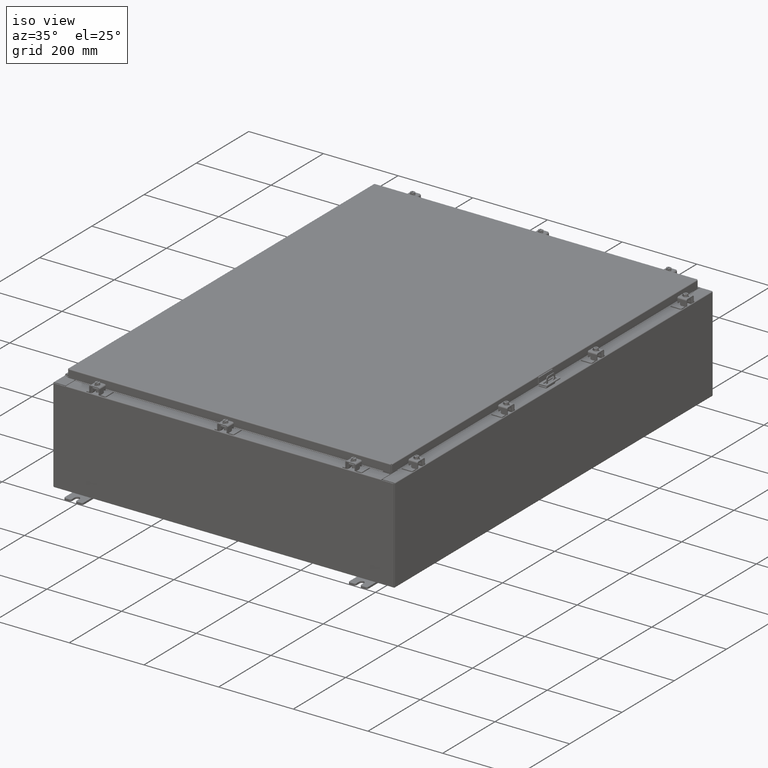
[diagram: clean part render]
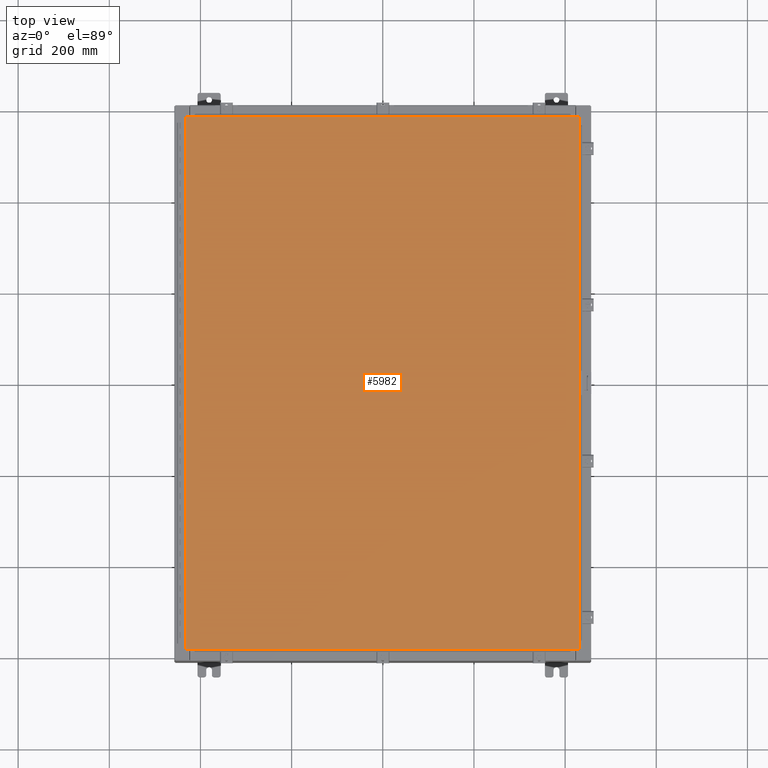
[diagram: tour spotlight — one face highlighted and labeled with its STEP entity id]
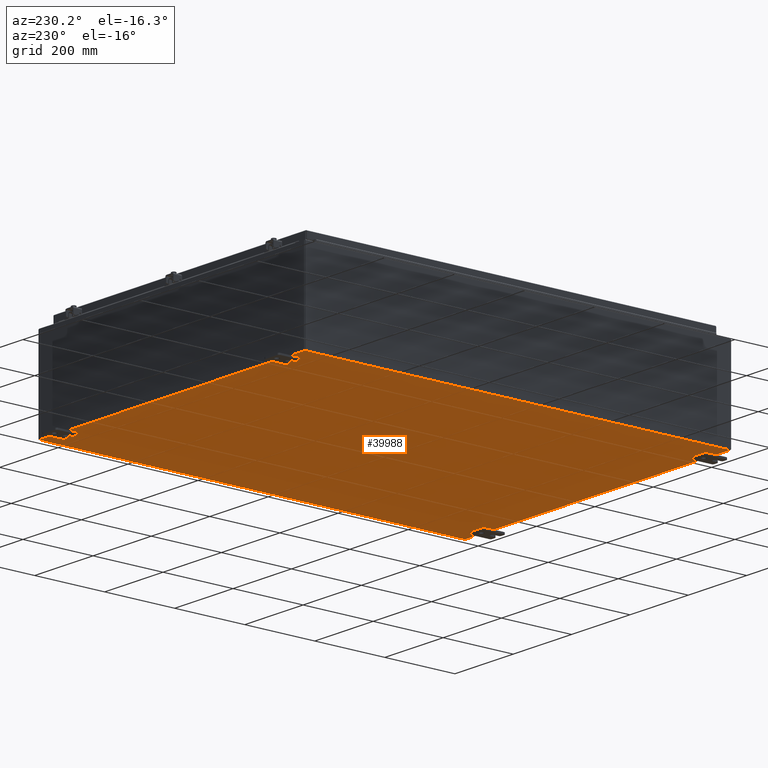
[diagram: tour spotlight — one face highlighted and labeled with its STEP entity id]
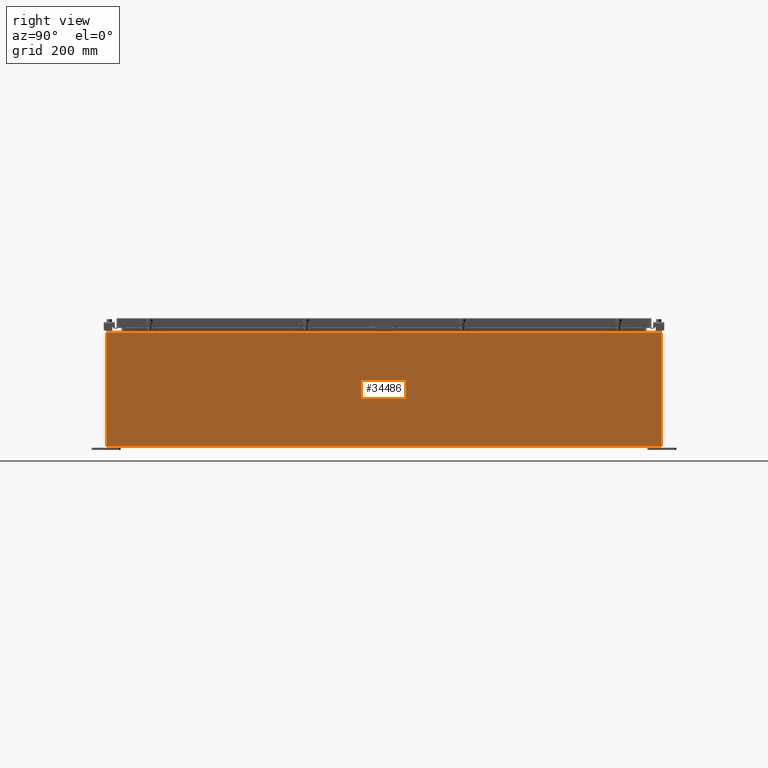
[diagram: tour spotlight — one face highlighted and labeled with its STEP entity id]
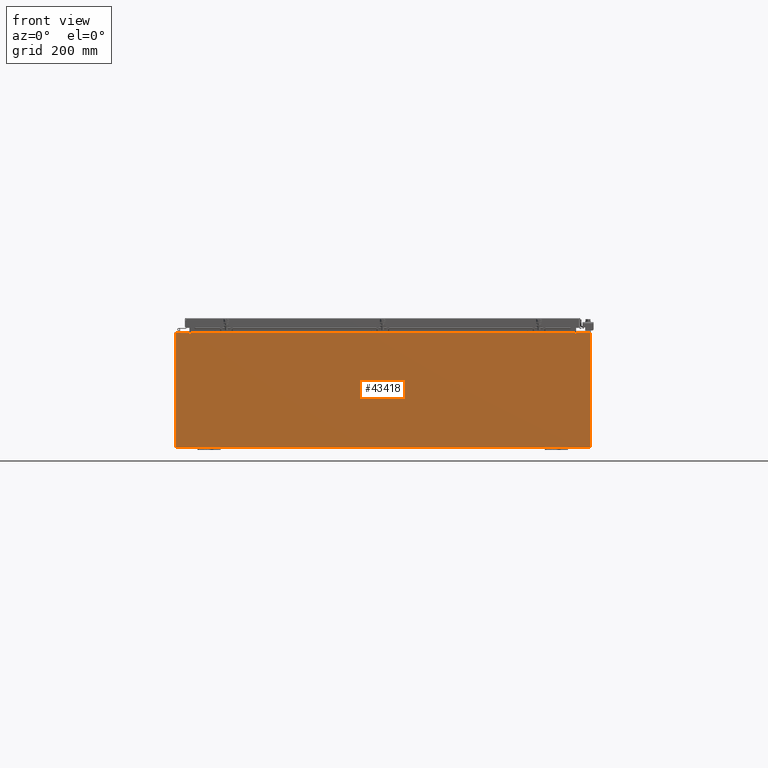
[diagram: tour spotlight — one face highlighted and labeled with its STEP entity id]
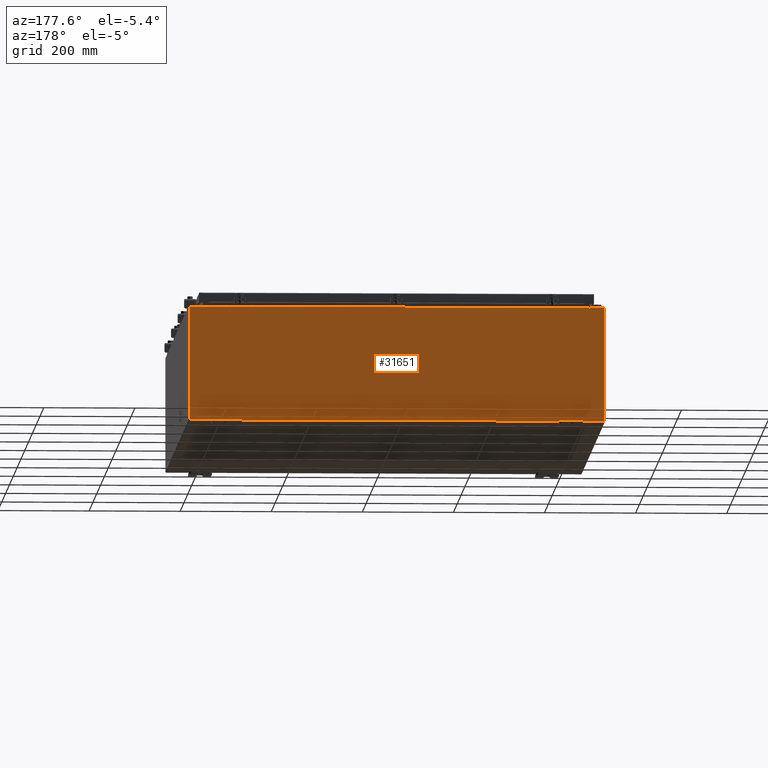
[diagram: tour spotlight — one face highlighted and labeled with its STEP entity id]
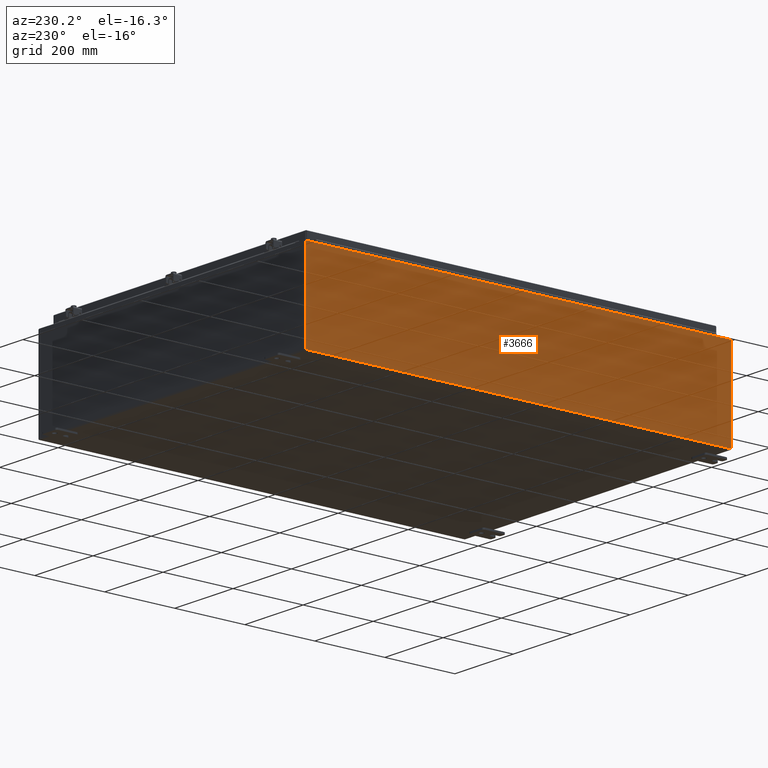
[diagram: tour spotlight — one face highlighted and labeled with its STEP entity id]
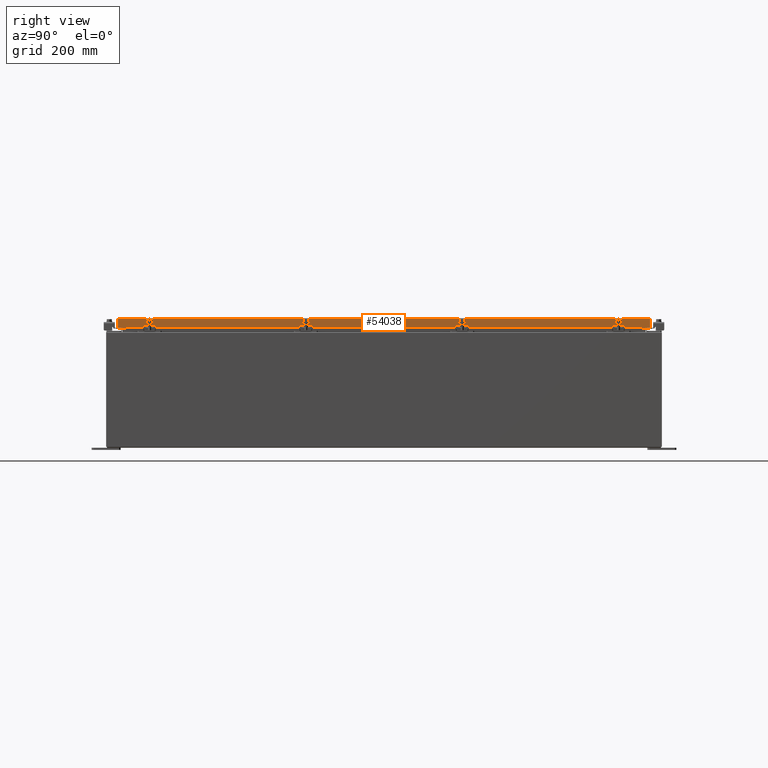
[diagram: tour spotlight — one face highlighted and labeled with its STEP entity id]
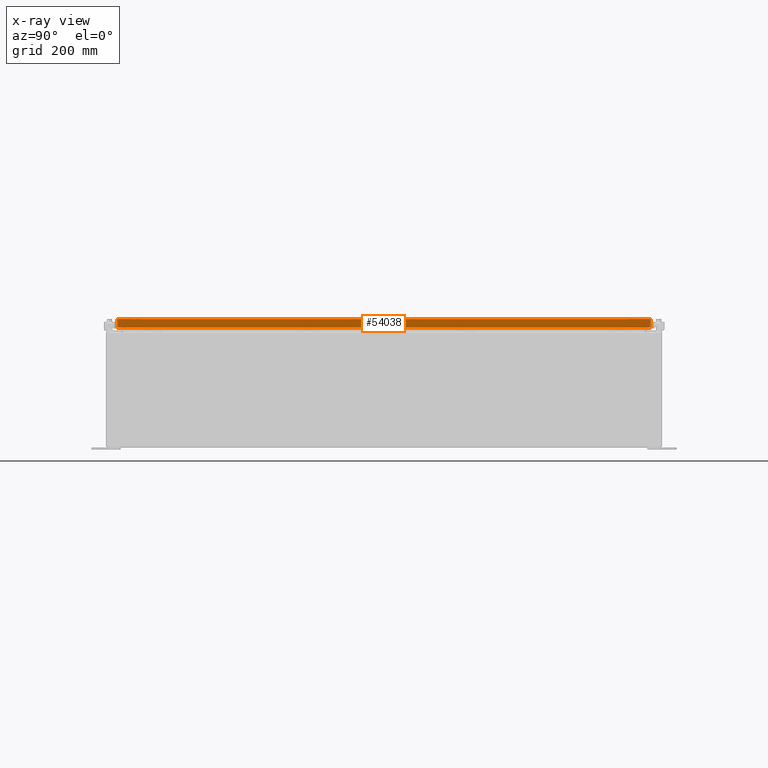
[diagram: x-ray of the same camera — body ghosted, this tour face saturated]
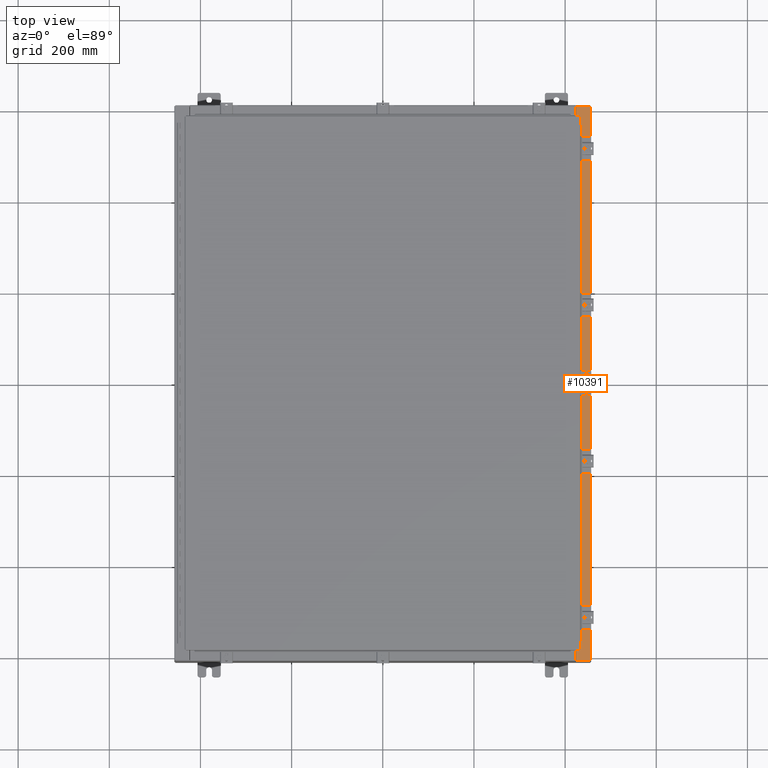
[diagram: tour spotlight — one face highlighted and labeled with its STEP entity id]
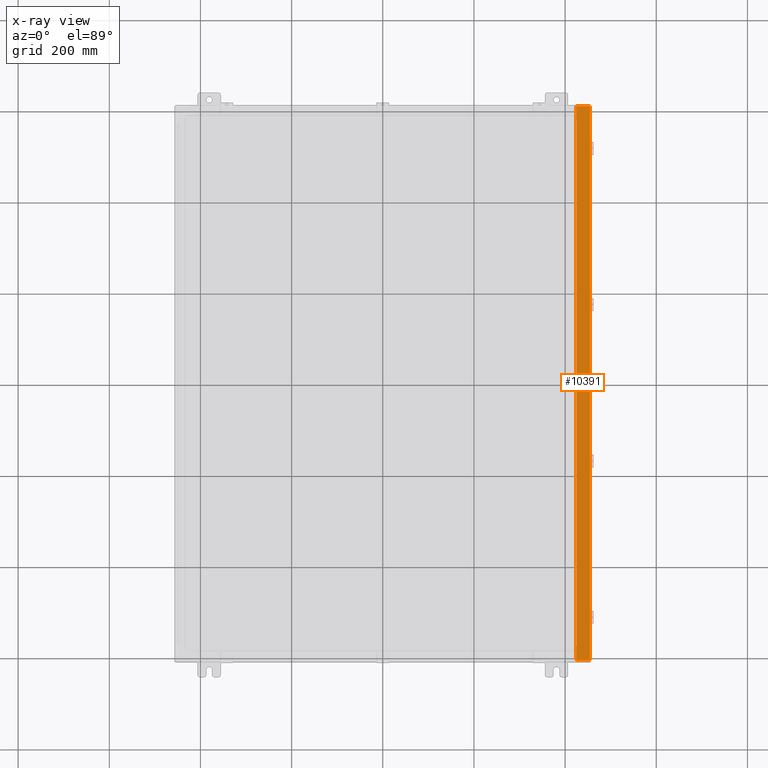
[diagram: x-ray of the same camera — body ghosted, this tour face saturated]
A machine part: a face-by-face anatomy tour. The part has 3115 B-rep faces; the first image is the clean iso view, then the 8 largest visible faces are spotlighted one at a time (largest first), each with its STEP entity span.

Face 1 — top view, entity #5982. In plain terms, the highlighted planar face has unit normal (0, 0, -1).
Definition (entity closure, byte-faithful):
#25 = CARTESIAN_POINT ( 'NONE',  ( 16.99029999999999800, 23.00630000000001000, 2.185478394931410600E-015 ) ) ;
#3387 = EDGE_CURVE ( 'NONE', #50913, #3507, #33335, .T. ) ;
#3507 = VERTEX_POINT ( 'NONE', #31065 ) ;
#3648 = CARTESIAN_POINT ( 'NONE',  ( 0.0000000000000000000, 0.0000000000000000000, 0.0000000000000000000 ) ) ;
#4104 = DIRECTION ( 'NONE',  ( 0.0000000000000000000, 1.000000000000000000, 0.0000000000000000000 ) ) ;
#5982 = ADVANCED_FACE ( 'NONE', ( #33607 ), #29200, .F. ) ;
#6112 = VECTOR ( 'NONE', #4104, 39.37007874015748100 ) ;
#7935 = DIRECTION ( 'NONE',  ( 0.0000000000000000000, 0.0000000000000000000, -1.000000000000000000 ) ) ;
#9081 = CARTESIAN_POINT ( 'NONE',  ( -16.99029999999998400, 23.00630000000001000, -2.185478394931410600E-015 ) ) ;
#13850 = LINE ( 'NONE', #34729, #35231 ) ;
#13889 = LINE ( 'NONE', #25, #21230 ) ;
#15018 = VERTEX_POINT ( 'NONE', #36266 ) ;
#15025 = ORIENTED_EDGE ( 'NONE', *, *, #50531, .T. ) ;
#16954 = DIRECTION ( 'NONE',  ( -1.000000000000000000, -0.0000000000000000000, -0.0000000000000000000 ) ) ;
#18390 = ORIENTED_EDGE ( 'NONE', *, *, #43251, .T. ) ;
#20623 = VECTOR ( 'NONE', #38962, 39.37007874015748100 ) ;
#21199 = EDGE_LOOP ( 'NONE', ( #23003, #18390, #15025, #49154 ) ) ;
#21230 = VECTOR ( 'NONE', #16954, 39.37007874015748100 ) ;
#23003 = ORIENTED_EDGE ( 'NONE', *, *, #34850, .T. ) ;
#25332 = CARTESIAN_POINT ( 'NONE',  ( 16.99029999999999800, -23.00630000000000300, 0.0000000000000000000 ) ) ;
#29200 = PLANE ( 'NONE',  #55047 ) ;
#29744 = CARTESIAN_POINT ( 'NONE',  ( 16.99029999999999800, -23.00630000000000300, 0.0000000000000000000 ) ) ;
#31065 = CARTESIAN_POINT ( 'NONE',  ( -16.99029999999999800, -23.00630000000000300, 2.185478394931410600E-015 ) ) ;
#33335 = LINE ( 'NONE', #9081, #20623 ) ;
#33607 = FACE_OUTER_BOUND ( 'NONE', #21199, .T. ) ;
#34729 = CARTESIAN_POINT ( 'NONE',  ( -16.99029999999999800, -23.00630000000000300, 2.185478394931410600E-015 ) ) ;
#34850 = EDGE_CURVE ( 'NONE', #3507, #38948, #13850, .T. ) ;
#35231 = VECTOR ( 'NONE', #39066, 39.37007874015748100 ) ;
#36266 = CARTESIAN_POINT ( 'NONE',  ( 16.99029999999999800, 23.00630000000001000, 2.185478394931410600E-015 ) ) ;
#37808 = DIRECTION ( 'NONE',  ( -1.000000000000000000, 0.0000000000000000000, -0.0000000000000000000 ) ) ;
#38948 = VERTEX_POINT ( 'NONE', #29744 ) ;
#38962 = DIRECTION ( 'NONE',  ( 0.0000000000000000000, -1.000000000000000000, 0.0000000000000000000 ) ) ;
#39066 = DIRECTION ( 'NONE',  ( 1.000000000000000000, -0.0000000000000000000, -0.0000000000000000000 ) ) ;
#40220 = LINE ( 'NONE', #25332, #6112 ) ;
#43251 = EDGE_CURVE ( 'NONE', #38948, #15018, #40220, .T. ) ;
#49154 = ORIENTED_EDGE ( 'NONE', *, *, #3387, .T. ) ;
#50531 = EDGE_CURVE ( 'NONE', #15018, #50913, #13889, .T. ) ;
#50913 = VERTEX_POINT ( 'NONE', #54151 ) ;
#54151 = CARTESIAN_POINT ( 'NONE',  ( -16.99029999999998400, 23.00630000000001000, -2.185478394931410600E-015 ) ) ;
#55047 = AXIS2_PLACEMENT_3D ( 'NONE', #3648, #7935, #37808 ) ;

Face 2 — auxiliary view, entity #39988. In plain terms, the highlighted planar face has unit normal (0, 0, -1).
Definition (entity closure, byte-faithful):
#752 = CARTESIAN_POINT ( 'NONE',  ( -18.00000000000000400, -23.92530000000000400, -0.07469999999999998900 ) ) ;
#2047 = ORIENTED_EDGE ( 'NONE', *, *, #42095, .T. ) ;
#3733 = PLANE ( 'NONE',  #28178 ) ;
#4265 = CARTESIAN_POINT ( 'NONE',  ( -18.00000000000000400, 23.92530000000000000, -0.07469999999999998900 ) ) ;
#6614 = VECTOR ( 'NONE', #8553, 39.37007874015748100 ) ;
#8012 = DIRECTION ( 'NONE',  ( 0.0000000000000000000, 0.0000000000000000000, -1.000000000000000000 ) ) ;
#8553 = DIRECTION ( 'NONE',  ( -1.000000000000000000, -0.0000000000000000000, -0.0000000000000000000 ) ) ;
#15792 = EDGE_CURVE ( 'NONE', #28536, #26786, #33305, .T. ) ;
#16879 = VECTOR ( 'NONE', #46983, 39.37007874015748100 ) ;
#17043 = CARTESIAN_POINT ( 'NONE',  ( 17.91229999999999500, 23.92529999999998900, -0.07469999999999688000 ) ) ;
#17374 = ORIENTED_EDGE ( 'NONE', *, *, #31487, .T. ) ;
#17682 = EDGE_LOOP ( 'NONE', ( #51894, #17374, #34485, #2047 ) ) ;
#19854 = VECTOR ( 'NONE', #26359, 39.37007874015748100 ) ;
#21488 = LINE ( 'NONE', #752, #41599 ) ;
#21969 = CARTESIAN_POINT ( 'NONE',  ( 17.91229999999999500, 23.92529999999998600, -0.07469999999999688000 ) ) ;
#22048 = CARTESIAN_POINT ( 'NONE',  ( -17.91230000000000500, -23.92529999999998900, -0.07469999999999996100 ) ) ;
#22637 = LINE ( 'NONE', #22048, #19854 ) ;
#26359 = DIRECTION ( 'NONE',  ( -0.0000000000000000000, 1.000000000000000000, -0.0000000000000000000 ) ) ;
#26786 = VERTEX_POINT ( 'NONE', #44921 ) ;
#28178 = AXIS2_PLACEMENT_3D ( 'NONE', #29279, #8012, #37895 ) ;
#28536 = VERTEX_POINT ( 'NONE', #21969 ) ;
#29279 = CARTESIAN_POINT ( 'NONE',  ( 0.0000000000000000000, 0.0000000000000000000, -0.07469999999999998900 ) ) ;
#31487 = EDGE_CURVE ( 'NONE', #43557, #26786, #22637, .T. ) ;
#32057 = EDGE_CURVE ( 'NONE', #43557, #42955, #21488, .T. ) ;
#33305 = LINE ( 'NONE', #4265, #6614 ) ;
#34485 = ORIENTED_EDGE ( 'NONE', *, *, #15792, .F. ) ;
#34889 = DIRECTION ( 'NONE',  ( 1.000000000000000000, 1.214154663850783700E-016, 0.0000000000000000000 ) ) ;
#37895 = DIRECTION ( 'NONE',  ( -1.000000000000000000, 0.0000000000000000000, -0.0000000000000000000 ) ) ;
#39988 = ADVANCED_FACE ( 'NONE', ( #49869 ), #3733, .T. ) ;
#40515 = CARTESIAN_POINT ( 'NONE',  ( -17.91230000000000500, -23.92529999999998600, -0.07469999999999996100 ) ) ;
#41599 = VECTOR ( 'NONE', #34889, 39.37007874015748100 ) ;
#42095 = EDGE_CURVE ( 'NONE', #28536, #42955, #51023, .T. ) ;
#42955 = VERTEX_POINT ( 'NONE', #44678 ) ;
#43557 = VERTEX_POINT ( 'NONE', #40515 ) ;
#44678 = CARTESIAN_POINT ( 'NONE',  ( 17.91229999999999500, -23.92530000000000000, -0.07469999999999998900 ) ) ;
#44921 = CARTESIAN_POINT ( 'NONE',  ( -17.91230000000000500, 23.92529999999998900, -0.07469999999999998900 ) ) ;
#46983 = DIRECTION ( 'NONE',  ( -0.0000000000000000000, -1.000000000000000000, -8.208677865577646300E-017 ) ) ;
#49869 = FACE_OUTER_BOUND ( 'NONE', #17682, .T. ) ;
#51023 = LINE ( 'NONE', #17043, #16879 ) ;
#51894 = ORIENTED_EDGE ( 'NONE', *, *, #32057, .F. ) ;

Face 3 — right view, entity #34486. In plain terms, the highlighted planar face has unit normal (-1, 0, 0).
Definition (entity closure, byte-faithful):
#951 = VERTEX_POINT ( 'NONE', #11110 ) ;
#2638 = CARTESIAN_POINT ( 'NONE',  ( 17.99999999999999600, -23.92529999999998900, -6.366913230233773300E-014 ) ) ;
#6291 = EDGE_CURVE ( 'NONE', #951, #13034, #7547, .T. ) ;
#7189 = LINE ( 'NONE', #28291, #48572 ) ;
#7547 = LINE ( 'NONE', #53117, #28896 ) ;
#8152 = VECTOR ( 'NONE', #45417, 39.37007874015748100 ) ;
#9660 = EDGE_CURVE ( 'NONE', #951, #11032, #7189, .T. ) ;
#11032 = VERTEX_POINT ( 'NONE', #23478 ) ;
#11110 = CARTESIAN_POINT ( 'NONE',  ( 17.99999999999999600, 23.92529999999998600, 0.01300000000000203600 ) ) ;
#11312 = DIRECTION ( 'NONE',  ( -1.609096119163526300E-031, -1.000000000000000000, -4.567295697298285000E-017 ) ) ;
#11778 = VECTOR ( 'NONE', #55147, 39.37007874015748100 ) ;
#13034 = VERTEX_POINT ( 'NONE', #33576 ) ;
#16201 = ORIENTED_EDGE ( 'NONE', *, *, #9660, .F. ) ;
#18856 = DIRECTION ( 'NONE',  ( 3.523082860860888200E-015, 0.0000000000000000000, 1.000000000000000000 ) ) ;
#19255 = DIRECTION ( 'NONE',  ( 3.523082860860887800E-015, 0.0000000000000000000, 1.000000000000000000 ) ) ;
#21735 = LINE ( 'NONE', #25192, #11778 ) ;
#23478 = CARTESIAN_POINT ( 'NONE',  ( 17.99999999999999600, -23.92529999999998900, 0.01299999999999897200 ) ) ;
#23847 = ORIENTED_EDGE ( 'NONE', *, *, #52145, .T. ) ;
#25192 = CARTESIAN_POINT ( 'NONE',  ( 18.00000000000003200, 23.92529999999998900, 9.837599999999994800 ) ) ;
#25477 = ORIENTED_EDGE ( 'NONE', *, *, #43067, .T. ) ;
#28161 = LINE ( 'NONE', #2638, #8152 ) ;
#28291 = CARTESIAN_POINT ( 'NONE',  ( 17.99999999999999600, -23.92529999999998900, 0.01299999999999985200 ) ) ;
#28896 = VECTOR ( 'NONE', #18856, 39.37007874015748100 ) ;
#30403 = EDGE_LOOP ( 'NONE', ( #23847, #25477, #16201, #53074 ) ) ;
#31974 = PLANE ( 'NONE',  #51623 ) ;
#33576 = CARTESIAN_POINT ( 'NONE',  ( 18.00000000000003200, 23.92529999999998600, 9.837599999999994800 ) ) ;
#34486 = ADVANCED_FACE ( 'NONE', ( #55378 ), #31974, .F. ) ;
#36293 = CARTESIAN_POINT ( 'NONE',  ( 17.99999999999999600, 0.0000000000000000000, -6.366913230233773300E-014 ) ) ;
#38649 = VERTEX_POINT ( 'NONE', #40478 ) ;
#40478 = CARTESIAN_POINT ( 'NONE',  ( 18.00000000000003200, -23.92529999999998900, 9.837600000000001900 ) ) ;
#43067 = EDGE_CURVE ( 'NONE', #38649, #11032, #28161, .T. ) ;
#44886 = DIRECTION ( 'NONE',  ( -1.000000000000000000, 0.0000000000000000000, 3.523082860860887800E-015 ) ) ;
#45417 = DIRECTION ( 'NONE',  ( -3.523082860860888200E-015, 0.0000000000000000000, -1.000000000000000000 ) ) ;
#48572 = VECTOR ( 'NONE', #11312, 39.37007874015748100 ) ;
#51623 = AXIS2_PLACEMENT_3D ( 'NONE', #36293, #44886, #19255 ) ;
#52145 = EDGE_CURVE ( 'NONE', #13034, #38649, #21735, .T. ) ;
#53074 = ORIENTED_EDGE ( 'NONE', *, *, #6291, .T. ) ;
#53117 = CARTESIAN_POINT ( 'NONE',  ( 17.99999999999999600, 23.92529999999998900, -6.366913230233773300E-014 ) ) ;
#55147 = DIRECTION ( 'NONE',  ( -0.0000000000000000000, -1.000000000000000000, -0.0000000000000000000 ) ) ;
#55378 = FACE_OUTER_BOUND ( 'NONE', #30403, .T. ) ;

Face 4 — front view, entity #43418. In plain terms, the highlighted planar face has unit normal (0, 1, -0).
Definition (entity closure, byte-faithful):
#1100 = DIRECTION ( 'NONE',  ( -2.688223102148531000E-016, -1.000000000000000000, -1.677591767810432300E-016 ) ) ;
#1140 = DIRECTION ( 'NONE',  ( 1.000000000000000000, 2.688223102148527500E-016, 8.326672684688674100E-016 ) ) ;
#1549 = CARTESIAN_POINT ( 'NONE',  ( 16.67455000000000000, 0.0000000000000000000, 4.874950000000010800 ) ) ;
#2095 = VERTEX_POINT ( 'NONE', #37620 ) ;
#2412 = LINE ( 'NONE', #15641, #22397 ) ;
#3000 = AXIS2_PLACEMENT_3D ( 'NONE', #6189, #36053, #10476 ) ;
#3231 = LINE ( 'NONE', #39724, #35932 ) ;
#3608 = DIRECTION ( 'NONE',  ( -8.764412287646896600E-014, 1.677591767810201100E-016, -1.000000000000000000 ) ) ;
#4142 = EDGE_CURVE ( 'NONE', #39135, #46623, #10640, .T. ) ;
#4429 = EDGE_CURVE ( 'NONE', #6989, #39388, #45392, .T. ) ;
#5480 = CIRCLE ( 'NONE', #3000, 0.01867499999999949400 ) ;
#5966 = EDGE_CURVE ( 'NONE', #30383, #39388, #22215, .T. ) ;
#6189 = CARTESIAN_POINT ( 'NONE',  ( -16.65587500000000200, 0.0000000000000000000, 4.874949999999987700 ) ) ;
#6989 = VERTEX_POINT ( 'NONE', #22748 ) ;
#7103 = LINE ( 'NONE', #49094, #51191 ) ;
#7116 = DIRECTION ( 'NONE',  ( -1.000000000000000000, -2.688223102148527500E-016, -8.326672684688674100E-016 ) ) ;
#7478 = CARTESIAN_POINT ( 'NONE',  ( -16.63720000000000400, 0.0000000000000000000, 4.874949999999987700 ) ) ;
#7638 = LINE ( 'NONE', #51627, #51739 ) ;
#7749 = ORIENTED_EDGE ( 'NONE', *, *, #38546, .F. ) ;
#8088 = LINE ( 'NONE', #47922, #29432 ) ;
#8494 = CARTESIAN_POINT ( 'NONE',  ( -17.92530000000000000, 0.0000000000000000000, 4.925299999999989400 ) ) ;
#8876 = DIRECTION ( 'NONE',  ( 1.000000000000000000, 2.688223102148527500E-016, 8.326672684688674100E-016 ) ) ;
#9271 = CARTESIAN_POINT ( 'NONE',  ( 17.92530000000000000, 0.0000000000000000000, 4.925300000000012400 ) ) ;
#10171 = ORIENTED_EDGE ( 'NONE', *, *, #35109, .F. ) ;
#10476 = DIRECTION ( 'NONE',  ( 0.0000000000000000000, 1.677591767810434500E-016, -1.000000000000000000 ) ) ;
#10640 = LINE ( 'NONE', #33264, #54774 ) ;
#10766 = FACE_OUTER_BOUND ( 'NONE', #43992, .T. ) ;
#11148 = LINE ( 'NONE', #43330, #22466 ) ;
#13396 = DIRECTION ( 'NONE',  ( -8.326672684688674100E-016, 1.677591767810434500E-016, -1.000000000000000000 ) ) ;
#13666 = CARTESIAN_POINT ( 'NONE',  ( 16.67455000000000700, 0.0000000000000000000, 4.925300000000012400 ) ) ;
#14238 = EDGE_CURVE ( 'NONE', #31038, #53785, #8088, .T. ) ;
#14554 = ORIENTED_EDGE ( 'NONE', *, *, #4142, .F. ) ;
#15641 = CARTESIAN_POINT ( 'NONE',  ( -17.92530000000001100, 0.0000000000000000000, -4.925300000000016000 ) ) ;
#17338 = EDGE_CURVE ( 'NONE', #22541, #49951, #7103, .T. ) ;
#17631 = CARTESIAN_POINT ( 'NONE',  ( -17.92530000000001100, 0.0000000000000000000, -4.925300000000016000 ) ) ;
#17863 = ORIENTED_EDGE ( 'NONE', *, *, #35376, .F. ) ;
#18321 = EDGE_CURVE ( 'NONE', #39135, #31038, #7638, .T. ) ;
#18372 = DIRECTION ( 'NONE',  ( 8.326672684688674100E-016, -1.677591767810434500E-016, 1.000000000000000000 ) ) ;
#20322 = DIRECTION ( 'NONE',  ( 2.688223102148528000E-016, 1.000000000000000000, -1.677591767810434000E-016 ) ) ;
#20727 = CARTESIAN_POINT ( 'NONE',  ( 16.63720000000000400, 0.0000000000000000000, 4.912300000000011700 ) ) ;
#22106 = DIRECTION ( 'NONE',  ( -8.326672684688674100E-016, 1.677591767810434500E-016, -1.000000000000000000 ) ) ;
#22215 = LINE ( 'NONE', #41938, #43661 ) ;
#22397 = VECTOR ( 'NONE', #7116, 39.37007874015748100 ) ;
#22466 = VECTOR ( 'NONE', #13396, 39.37007874015748100 ) ;
#22536 = CARTESIAN_POINT ( 'NONE',  ( 16.63720000000000400, 0.0000000000000000000, 4.874950000000010800 ) ) ;
#22541 = VERTEX_POINT ( 'NONE', #17631 ) ;
#22600 = AXIS2_PLACEMENT_3D ( 'NONE', #45974, #20322, #50269 ) ;
#22748 = CARTESIAN_POINT ( 'NONE',  ( -16.63720000000000400, 0.0000000000000000000, 4.912299999999989500 ) ) ;
#23028 = CARTESIAN_POINT ( 'NONE',  ( 17.92529999999998900, 0.0000000000000000000, -4.925299999999989400 ) ) ;
#23451 = DIRECTION ( 'NONE',  ( 8.326672684688674100E-016, -1.677591767810434500E-016, 1.000000000000000000 ) ) ;
#23601 = ORIENTED_EDGE ( 'NONE', *, *, #17338, .T. ) ;
#23738 = ORIENTED_EDGE ( 'NONE', *, *, #14238, .T. ) ;
#24511 = CIRCLE ( 'NONE', #22600, 0.01867499999999949400 ) ;
#26168 = DIRECTION ( 'NONE',  ( 1.000000000000000000, 2.688223102148527500E-016, 8.326672684688674100E-016 ) ) ;
#29105 = EDGE_CURVE ( 'NONE', #49951, #46682, #45709, .T. ) ;
#29432 = VECTOR ( 'NONE', #22106, 39.37007874015748100 ) ;
#29915 = EDGE_CURVE ( 'NONE', #47440, #2095, #5480, .T. ) ;
#30383 = VERTEX_POINT ( 'NONE', #22536 ) ;
#30928 = DIRECTION ( 'NONE',  ( -8.326672684688674100E-016, 1.677591767810434500E-016, -1.000000000000000000 ) ) ;
#31038 = VERTEX_POINT ( 'NONE', #9271 ) ;
#32961 = VECTOR ( 'NONE', #8876, 39.37007874015748100 ) ;
#33264 = CARTESIAN_POINT ( 'NONE',  ( 16.67454999999957700, 0.0000000000000000000, -1.433673827075005300E-012 ) ) ;
#33985 = VECTOR ( 'NONE', #1140, 39.37007874015748100 ) ;
#35109 = EDGE_CURVE ( 'NONE', #46623, #30383, #24511, .T. ) ;
#35376 = EDGE_CURVE ( 'NONE', #6989, #47440, #11148, .T. ) ;
#35932 = VECTOR ( 'NONE', #18372, 39.37007874015748100 ) ;
#36053 = DIRECTION ( 'NONE',  ( 2.688223102148528000E-016, 1.000000000000000000, -1.677591767810434000E-016 ) ) ;
#37287 = ORIENTED_EDGE ( 'NONE', *, *, #18321, .T. ) ;
#37604 = ORIENTED_EDGE ( 'NONE', *, *, #29915, .F. ) ;
#37620 = CARTESIAN_POINT ( 'NONE',  ( -16.67455000000000000, 0.0000000000000000000, 4.874949999999987700 ) ) ;
#37624 = DIRECTION ( 'NONE',  ( 8.326672684688674100E-016, -1.677591767810434500E-016, 1.000000000000000000 ) ) ;
#38546 = EDGE_CURVE ( 'NONE', #2095, #46682, #3231, .T. ) ;
#39135 = VERTEX_POINT ( 'NONE', #13666 ) ;
#39388 = VERTEX_POINT ( 'NONE', #20727 ) ;
#39622 = ORIENTED_EDGE ( 'NONE', *, *, #39854, .T. ) ;
#39724 = CARTESIAN_POINT ( 'NONE',  ( -16.67455000000000000, 0.0000000000000000000, -1.365923996832131600E-014 ) ) ;
#39854 = EDGE_CURVE ( 'NONE', #53785, #22541, #2412, .T. ) ;
#40624 = CARTESIAN_POINT ( 'NONE',  ( -16.67455000000000000, 0.0000000000000000000, 4.925299999999989400 ) ) ;
#41478 = ORIENTED_EDGE ( 'NONE', *, *, #5966, .F. ) ;
#41938 = CARTESIAN_POINT ( 'NONE',  ( 16.63720000000000400, 0.0000000000000000000, 1.365923996832131600E-014 ) ) ;
#43330 = CARTESIAN_POINT ( 'NONE',  ( -16.63720000000000400, 0.0000000000000000000, -1.365923996832131600E-014 ) ) ;
#43418 = ADVANCED_FACE ( 'NONE', ( #10766 ), #52269, .F. ) ;
#43661 = VECTOR ( 'NONE', #37624, 39.37007874015748100 ) ;
#43992 = EDGE_LOOP ( 'NONE', ( #7749, #37604, #17863, #50465, #41478, #10171, #14554, #37287, #23738, #39622, #23601, #44530 ) ) ;
#44530 = ORIENTED_EDGE ( 'NONE', *, *, #29105, .T. ) ;
#45392 = LINE ( 'NONE', #52307, #33985 ) ;
#45709 = LINE ( 'NONE', #47366, #32961 ) ;
#45906 = AXIS2_PLACEMENT_3D ( 'NONE', #47965, #1100, #30928 ) ;
#45974 = CARTESIAN_POINT ( 'NONE',  ( 16.65587500000000200, 0.0000000000000000000, 4.874950000000010800 ) ) ;
#46623 = VERTEX_POINT ( 'NONE', #1549 ) ;
#46682 = VERTEX_POINT ( 'NONE', #40624 ) ;
#47366 = CARTESIAN_POINT ( 'NONE',  ( -17.92530000000000000, 0.0000000000000000000, 4.925299999999989400 ) ) ;
#47440 = VERTEX_POINT ( 'NONE', #7478 ) ;
#47922 = CARTESIAN_POINT ( 'NONE',  ( 17.92530000000000000, 0.0000000000000000000, 4.925300000000012400 ) ) ;
#47965 = CARTESIAN_POINT ( 'NONE',  ( 0.0000000000000000000, 0.0000000000000000000, 0.0000000000000000000 ) ) ;
#49094 = CARTESIAN_POINT ( 'NONE',  ( -17.92530000000000000, 0.0000000000000000000, 4.925299999999989400 ) ) ;
#49951 = VERTEX_POINT ( 'NONE', #8494 ) ;
#50269 = DIRECTION ( 'NONE',  ( 0.0000000000000000000, 1.677591767810434500E-016, -1.000000000000000000 ) ) ;
#50465 = ORIENTED_EDGE ( 'NONE', *, *, #4429, .T. ) ;
#51191 = VECTOR ( 'NONE', #23451, 39.37007874015748100 ) ;
#51627 = CARTESIAN_POINT ( 'NONE',  ( -17.92530000000000000, 0.0000000000000000000, 4.925299999999989400 ) ) ;
#51739 = VECTOR ( 'NONE', #26168, 39.37007874015748100 ) ;
#52269 = PLANE ( 'NONE',  #45906 ) ;
#52307 = CARTESIAN_POINT ( 'NONE',  ( -16.63720000000000400, 0.0000000000000000000, 4.912299999999989500 ) ) ;
#53785 = VERTEX_POINT ( 'NONE', #23028 ) ;
#54774 = VECTOR ( 'NONE', #3608, 39.37007874015748100 ) ;

Face 5 — auxiliary view, entity #31651. In plain terms, the highlighted planar face has unit normal (0, -1, 0).
Definition (entity closure, byte-faithful):
#296 = EDGE_CURVE ( 'NONE', #27588, #50567, #21619, .T. ) ;
#1169 = VECTOR ( 'NONE', #40123, 39.37007874015748100 ) ;
#2481 = CARTESIAN_POINT ( 'NONE',  ( 16.67454999999957700, 0.0000000000000000000, -1.447333067043326700E-012 ) ) ;
#2507 = LINE ( 'NONE', #35791, #1169 ) ;
#2865 = ORIENTED_EDGE ( 'NONE', *, *, #9477, .T. ) ;
#3163 = LINE ( 'NONE', #37747, #13145 ) ;
#4118 = FACE_OUTER_BOUND ( 'NONE', #36236, .T. ) ;
#4446 = EDGE_CURVE ( 'NONE', #52005, #43382, #46724, .T. ) ;
#4652 = LINE ( 'NONE', #26536, #48736 ) ;
#4694 = EDGE_CURVE ( 'NONE', #43382, #50567, #6312, .T. ) ;
#4863 = DIRECTION ( 'NONE',  ( 1.000000000000000000, 0.0000000000000000000, 0.0000000000000000000 ) ) ;
#5310 = EDGE_CURVE ( 'NONE', #8154, #32196, #41744, .T. ) ;
#6312 = LINE ( 'NONE', #36985, #49063 ) ;
#6779 = DIRECTION ( 'NONE',  ( 0.0000000000000000000, -1.000000000000000000, 0.0000000000000000000 ) ) ;
#6922 = AXIS2_PLACEMENT_3D ( 'NONE', #33529, #7981, #37860 ) ;
#7981 = DIRECTION ( 'NONE',  ( -0.0000000000000000000, 1.000000000000000000, -0.0000000000000000000 ) ) ;
#8154 = VERTEX_POINT ( 'NONE', #9210 ) ;
#8219 = EDGE_CURVE ( 'NONE', #41186, #16528, #4652, .T. ) ;
#8441 = EDGE_CURVE ( 'NONE', #31428, #52005, #43399, .T. ) ;
#8771 = EDGE_CURVE ( 'NONE', #31428, #49930, #13248, .T. ) ;
#8966 = VECTOR ( 'NONE', #47317, 39.37007874015748100 ) ;
#9077 = ORIENTED_EDGE ( 'NONE', *, *, #4446, .F. ) ;
#9128 = CARTESIAN_POINT ( 'NONE',  ( 16.63720000000000400, 0.0000000000000000000, 4.874949999999999200 ) ) ;
#9197 = CARTESIAN_POINT ( 'NONE',  ( -16.67455000000000000, 0.0000000000000000000, 4.925300000000000000 ) ) ;
#9210 = CARTESIAN_POINT ( 'NONE',  ( 17.92530000000000000, 0.0000000000000000000, -4.925300000000000000 ) ) ;
#9477 = EDGE_CURVE ( 'NONE', #49930, #8154, #2507, .T. ) ;
#10311 = PLANE ( 'NONE',  #54756 ) ;
#11796 = CARTESIAN_POINT ( 'NONE',  ( -16.63720000000000400, 0.0000000000000000000, 4.912300000000000100 ) ) ;
#13145 = VECTOR ( 'NONE', #24623, 39.37007874015748100 ) ;
#13248 = LINE ( 'NONE', #21808, #44688 ) ;
#14150 = DIRECTION ( 'NONE',  ( -0.0000000000000000000, 1.000000000000000000, -0.0000000000000000000 ) ) ;
#15027 = ORIENTED_EDGE ( 'NONE', *, *, #21094, .F. ) ;
#15618 = ORIENTED_EDGE ( 'NONE', *, *, #23536, .T. ) ;
#16528 = VERTEX_POINT ( 'NONE', #9197 ) ;
#19607 = DIRECTION ( 'NONE',  ( -8.681145560800009800E-014, 0.0000000000000000000, -1.000000000000000000 ) ) ;
#20225 = CARTESIAN_POINT ( 'NONE',  ( -16.63720000000000400, 0.0000000000000000000, 0.0000000000000000000 ) ) ;
#20566 = ORIENTED_EDGE ( 'NONE', *, *, #8441, .F. ) ;
#21094 = EDGE_CURVE ( 'NONE', #51150, #41186, #48831, .T. ) ;
#21110 = VECTOR ( 'NONE', #32151, 39.37007874015748100 ) ;
#21619 = LINE ( 'NONE', #38730, #8966 ) ;
#21808 = CARTESIAN_POINT ( 'NONE',  ( -17.92530000000000000, 0.0000000000000000000, 4.925300000000000000 ) ) ;
#22544 = CARTESIAN_POINT ( 'NONE',  ( -17.92530000000000000, 0.0000000000000000000, 4.925300000000000000 ) ) ;
#23536 = EDGE_CURVE ( 'NONE', #25978, #16528, #3163, .T. ) ;
#23719 = CARTESIAN_POINT ( 'NONE',  ( 0.0000000000000000000, 0.0000000000000000000, 0.0000000000000000000 ) ) ;
#23902 = CARTESIAN_POINT ( 'NONE',  ( 16.67455000000000000, 0.0000000000000000000, 4.874949999999999200 ) ) ;
#24212 = DIRECTION ( 'NONE',  ( 0.0000000000000000000, 0.0000000000000000000, 1.000000000000000000 ) ) ;
#24523 = DIRECTION ( 'NONE',  ( 0.0000000000000000000, 0.0000000000000000000, -1.000000000000000000 ) ) ;
#24623 = DIRECTION ( 'NONE',  ( 1.000000000000000000, 0.0000000000000000000, 0.0000000000000000000 ) ) ;
#25429 = CARTESIAN_POINT ( 'NONE',  ( 17.92530000000000000, 0.0000000000000000000, 4.925300000000000000 ) ) ;
#25978 = VERTEX_POINT ( 'NONE', #22544 ) ;
#26536 = CARTESIAN_POINT ( 'NONE',  ( -16.67455000000000000, 0.0000000000000000000, 0.0000000000000000000 ) ) ;
#27588 = VERTEX_POINT ( 'NONE', #11796 ) ;
#27979 = VECTOR ( 'NONE', #19607, 39.37007874015748100 ) ;
#31428 = VERTEX_POINT ( 'NONE', #34420 ) ;
#31651 = ADVANCED_FACE ( 'NONE', ( #4118 ), #10311, .F. ) ;
#32151 = DIRECTION ( 'NONE',  ( -0.0000000000000000000, -0.0000000000000000000, 1.000000000000000000 ) ) ;
#32196 = VERTEX_POINT ( 'NONE', #44075 ) ;
#33529 = CARTESIAN_POINT ( 'NONE',  ( -16.65587500000000200, 0.0000000000000000000, 4.874949999999999200 ) ) ;
#34012 = VECTOR ( 'NONE', #24523, 39.37007874015748100 ) ;
#34105 = ORIENTED_EDGE ( 'NONE', *, *, #296, .T. ) ;
#34349 = CARTESIAN_POINT ( 'NONE',  ( 16.63720000000000400, 0.0000000000000000000, 4.912300000000000100 ) ) ;
#34420 = CARTESIAN_POINT ( 'NONE',  ( 16.67455000000000700, 0.0000000000000000000, 4.925300000000000000 ) ) ;
#34974 = ORIENTED_EDGE ( 'NONE', *, *, #8771, .T. ) ;
#35791 = CARTESIAN_POINT ( 'NONE',  ( 17.92530000000000000, 0.0000000000000000000, 4.925300000000000000 ) ) ;
#36236 = EDGE_LOOP ( 'NONE', ( #46482, #15027, #42015, #34105, #41765, #9077, #20566, #34974, #2865, #46053, #37645, #15618 ) ) ;
#36662 = DIRECTION ( 'NONE',  ( 0.0000000000000000000, -0.0000000000000000000, -1.000000000000000000 ) ) ;
#36985 = CARTESIAN_POINT ( 'NONE',  ( 16.63720000000000400, 0.0000000000000000000, 0.0000000000000000000 ) ) ;
#37645 = ORIENTED_EDGE ( 'NONE', *, *, #51965, .T. ) ;
#37747 = CARTESIAN_POINT ( 'NONE',  ( -17.92530000000000000, 0.0000000000000000000, 4.925300000000000000 ) ) ;
#37860 = DIRECTION ( 'NONE',  ( 0.0000000000000000000, 0.0000000000000000000, -1.000000000000000000 ) ) ;
#38730 = CARTESIAN_POINT ( 'NONE',  ( -16.63720000000000400, 0.0000000000000000000, 4.912300000000000100 ) ) ;
#39810 = CARTESIAN_POINT ( 'NONE',  ( 16.65587500000000200, 0.0000000000000000000, 4.874949999999999200 ) ) ;
#40123 = DIRECTION ( 'NONE',  ( 0.0000000000000000000, 0.0000000000000000000, -1.000000000000000000 ) ) ;
#40199 = CARTESIAN_POINT ( 'NONE',  ( -16.67455000000000000, 0.0000000000000000000, 4.874949999999999200 ) ) ;
#41186 = VERTEX_POINT ( 'NONE', #40199 ) ;
#41387 = AXIS2_PLACEMENT_3D ( 'NONE', #39810, #14150, #44087 ) ;
#41744 = LINE ( 'NONE', #54335, #51757 ) ;
#41765 = ORIENTED_EDGE ( 'NONE', *, *, #4694, .F. ) ;
#42015 = ORIENTED_EDGE ( 'NONE', *, *, #44558, .F. ) ;
#43382 = VERTEX_POINT ( 'NONE', #9128 ) ;
#43399 = LINE ( 'NONE', #2481, #27979 ) ;
#43773 = DIRECTION ( 'NONE',  ( 0.0000000000000000000, 0.0000000000000000000, 1.000000000000000000 ) ) ;
#44075 = CARTESIAN_POINT ( 'NONE',  ( -17.92530000000000000, 0.0000000000000000000, -4.925300000000000000 ) ) ;
#44087 = DIRECTION ( 'NONE',  ( 0.0000000000000000000, 0.0000000000000000000, -1.000000000000000000 ) ) ;
#44558 = EDGE_CURVE ( 'NONE', #27588, #51150, #45421, .T. ) ;
#44688 = VECTOR ( 'NONE', #4863, 39.37007874015748100 ) ;
#45071 = CARTESIAN_POINT ( 'NONE',  ( -17.92530000000000000, 0.0000000000000000000, 4.925300000000000000 ) ) ;
#45421 = LINE ( 'NONE', #20225, #34012 ) ;
#45935 = DIRECTION ( 'NONE',  ( -1.000000000000000000, -0.0000000000000000000, -0.0000000000000000000 ) ) ;
#46053 = ORIENTED_EDGE ( 'NONE', *, *, #5310, .T. ) ;
#46482 = ORIENTED_EDGE ( 'NONE', *, *, #8219, .F. ) ;
#46724 = CIRCLE ( 'NONE', #41387, 0.01867499999999949400 ) ;
#47017 = CARTESIAN_POINT ( 'NONE',  ( -16.63720000000000400, 0.0000000000000000000, 4.874949999999999200 ) ) ;
#47317 = DIRECTION ( 'NONE',  ( 1.000000000000000000, 0.0000000000000000000, 0.0000000000000000000 ) ) ;
#48736 = VECTOR ( 'NONE', #43773, 39.37007874015748100 ) ;
#48831 = CIRCLE ( 'NONE', #6922, 0.01867499999999949400 ) ;
#49063 = VECTOR ( 'NONE', #24212, 39.37007874015748100 ) ;
#49930 = VERTEX_POINT ( 'NONE', #25429 ) ;
#50567 = VERTEX_POINT ( 'NONE', #34349 ) ;
#51150 = VERTEX_POINT ( 'NONE', #47017 ) ;
#51757 = VECTOR ( 'NONE', #45935, 39.37007874015748100 ) ;
#51965 = EDGE_CURVE ( 'NONE', #32196, #25978, #53927, .T. ) ;
#52005 = VERTEX_POINT ( 'NONE', #23902 ) ;
#53927 = LINE ( 'NONE', #45071, #21110 ) ;
#54335 = CARTESIAN_POINT ( 'NONE',  ( -17.92530000000000000, 0.0000000000000000000, -4.925300000000000000 ) ) ;
#54756 = AXIS2_PLACEMENT_3D ( 'NONE', #23719, #6779, #36662 ) ;

Face 6 — auxiliary view, entity #3666. In plain terms, the highlighted planar face has unit normal (1, 0, 0).
Definition (entity closure, byte-faithful):
#1521 = LINE ( 'NONE', #29358, #44305 ) ;
#1547 = ORIENTED_EDGE ( 'NONE', *, *, #20142, .T. ) ;
#1791 = VERTEX_POINT ( 'NONE', #5705 ) ;
#3666 = ADVANCED_FACE ( 'NONE', ( #10688 ), #32382, .F. ) ;
#5705 = CARTESIAN_POINT ( 'NONE',  ( -18.00000000000000400, -23.92529999999998600, 0.01299999999999985200 ) ) ;
#9175 = VECTOR ( 'NONE', #10917, 39.37007874015748100 ) ;
#10688 = FACE_OUTER_BOUND ( 'NONE', #12967, .T. ) ;
#10917 = DIRECTION ( 'NONE',  ( -0.0000000000000000000, 1.000000000000000000, -0.0000000000000000000 ) ) ;
#12403 = CARTESIAN_POINT ( 'NONE',  ( -18.00000000000003900, 23.92529999999998900, 9.837600000000000100 ) ) ;
#12967 = EDGE_LOOP ( 'NONE', ( #1547, #33570, #46319, #38724 ) ) ;
#14052 = VERTEX_POINT ( 'NONE', #42542 ) ;
#14651 = VERTEX_POINT ( 'NONE', #12403 ) ;
#20142 = EDGE_CURVE ( 'NONE', #45531, #14651, #47601, .T. ) ;
#26184 = VECTOR ( 'NONE', #34735, 39.37007874015748100 ) ;
#26800 = EDGE_CURVE ( 'NONE', #1791, #14052, #31884, .T. ) ;
#27417 = CARTESIAN_POINT ( 'NONE',  ( -18.00000000000003900, -23.92529999999998600, 9.837600000000000100 ) ) ;
#28073 = CARTESIAN_POINT ( 'NONE',  ( -18.00000000000000400, 0.0000000000000000000, -6.366913230233773300E-014 ) ) ;
#28274 = AXIS2_PLACEMENT_3D ( 'NONE', #28073, #49404, #36710 ) ;
#29358 = CARTESIAN_POINT ( 'NONE',  ( -18.00000000000000400, 23.92529999999998900, -6.366913230233773300E-014 ) ) ;
#31884 = LINE ( 'NONE', #36535, #9175 ) ;
#32382 = PLANE ( 'NONE',  #28274 ) ;
#33283 = DIRECTION ( 'NONE',  ( -3.523082860860888200E-015, 0.0000000000000000000, 1.000000000000000000 ) ) ;
#33570 = ORIENTED_EDGE ( 'NONE', *, *, #54087, .T. ) ;
#34735 = DIRECTION ( 'NONE',  ( 0.0000000000000000000, 1.000000000000000000, 0.0000000000000000000 ) ) ;
#36535 = CARTESIAN_POINT ( 'NONE',  ( -18.00000000000000400, 23.92529999999998900, 0.01299999999999985200 ) ) ;
#36710 = DIRECTION ( 'NONE',  ( 3.523082860860887800E-015, 0.0000000000000000000, -1.000000000000000000 ) ) ;
#36873 = VECTOR ( 'NONE', #33283, 39.37007874015748100 ) ;
#38724 = ORIENTED_EDGE ( 'NONE', *, *, #48575, .T. ) ;
#39074 = CARTESIAN_POINT ( 'NONE',  ( -18.00000000000003900, -23.92529999999998900, 9.837600000000000100 ) ) ;
#41739 = CARTESIAN_POINT ( 'NONE',  ( -18.00000000000000400, -23.92529999999999600, -6.366913230233773300E-014 ) ) ;
#42542 = CARTESIAN_POINT ( 'NONE',  ( -18.00000000000000400, 23.92529999999998900, 0.01299999999999984300 ) ) ;
#44305 = VECTOR ( 'NONE', #46585, 39.37007874015748100 ) ;
#45531 = VERTEX_POINT ( 'NONE', #27417 ) ;
#46319 = ORIENTED_EDGE ( 'NONE', *, *, #26800, .F. ) ;
#46585 = DIRECTION ( 'NONE',  ( 3.523082860860888200E-015, 0.0000000000000000000, -1.000000000000000000 ) ) ;
#47601 = LINE ( 'NONE', #39074, #26184 ) ;
#48198 = LINE ( 'NONE', #41739, #36873 ) ;
#48575 = EDGE_CURVE ( 'NONE', #1791, #45531, #48198, .T. ) ;
#49404 = DIRECTION ( 'NONE',  ( 1.000000000000000000, 0.0000000000000000000, 3.523082860860887800E-015 ) ) ;
#54087 = EDGE_CURVE ( 'NONE', #14651, #14052, #1521, .T. ) ;

Face 7 — right view, entity #54038. An x-ray twin of the same camera follows (body ghosted, this face saturated) — the face is partly hidden behind the body. In plain terms, the highlighted planar face has unit normal (1, 0, 0).
Definition (entity closure, byte-faithful):
#701 = DIRECTION ( 'NONE',  ( 0.0000000000000000000, -1.000000000000000000, 0.0000000000000000000 ) ) ;
#2050 = VECTOR ( 'NONE', #46648, 39.37007874015748100 ) ;
#2204 = LINE ( 'NONE', #23928, #46321 ) ;
#5630 = LINE ( 'NONE', #26240, #39730 ) ;
#6155 = CARTESIAN_POINT ( 'NONE',  ( 17.07800000000000300, -23.09400000000000100, -0.8499999999999999800 ) ) ;
#6797 = VERTEX_POINT ( 'NONE', #37575 ) ;
#7925 = CARTESIAN_POINT ( 'NONE',  ( 17.07799999999999900, 0.0000000000000000000, 4.808052468849102900E-014 ) ) ;
#12205 = DIRECTION ( 'NONE',  ( 2.818880942772360100E-015, 0.0000000000000000000, -1.000000000000000000 ) ) ;
#12456 = CARTESIAN_POINT ( 'NONE',  ( 17.07799999999999900, 0.0000000000000000000, -0.08770000000000026400 ) ) ;
#12844 = VECTOR ( 'NONE', #42977, 39.37007874015748100 ) ;
#12883 = FACE_OUTER_BOUND ( 'NONE', #32220, .T. ) ;
#14149 = LINE ( 'NONE', #38678, #12844 ) ;
#17388 = DIRECTION ( 'NONE',  ( 0.0000000000000000000, -1.000000000000000000, 0.0000000000000000000 ) ) ;
#19704 = CARTESIAN_POINT ( 'NONE',  ( 17.07799999999999600, 22.25515786437627200, -0.8500000000000020900 ) ) ;
#21142 = EDGE_CURVE ( 'NONE', #47171, #31948, #47494, .T. ) ;
#21434 = CARTESIAN_POINT ( 'NONE',  ( 17.07799999999999900, -23.00515786437626900, -0.08770000000000026400 ) ) ;
#22754 = CARTESIAN_POINT ( 'NONE',  ( 17.07799999999999900, 23.00515786437627200, -0.08770000000000026400 ) ) ;
#22942 = ORIENTED_EDGE ( 'NONE', *, *, #42399, .T. ) ;
#23928 = CARTESIAN_POINT ( 'NONE',  ( 17.07799999999999900, 23.00515786437627600, 2.098059259134154200E-013 ) ) ;
#26240 = CARTESIAN_POINT ( 'NONE',  ( 17.07799999999999600, 22.25515786437628000, -0.8500000000000020900 ) ) ;
#29922 = ORIENTED_EDGE ( 'NONE', *, *, #31975, .F. ) ;
#30097 = CARTESIAN_POINT ( 'NONE',  ( 17.07800000000000300, -23.09400000000000100, -0.8499999999999999800 ) ) ;
#31409 = EDGE_CURVE ( 'NONE', #53241, #33980, #36752, .T. ) ;
#31540 = ORIENTED_EDGE ( 'NONE', *, *, #38226, .F. ) ;
#31715 = DIRECTION ( 'NONE',  ( 0.0000000000000000000, -1.000000000000000000, 0.0000000000000000000 ) ) ;
#31948 = VERTEX_POINT ( 'NONE', #21434 ) ;
#31975 = EDGE_CURVE ( 'NONE', #6797, #31948, #14149, .T. ) ;
#32220 = EDGE_LOOP ( 'NONE', ( #29922, #31540, #53736, #46435, #22942, #47063 ) ) ;
#32555 = DIRECTION ( 'NONE',  ( -2.818880942772360100E-015, -6.982962677686267500E-015, 1.000000000000000000 ) ) ;
#33980 = VERTEX_POINT ( 'NONE', #19704 ) ;
#36752 = LINE ( 'NONE', #30097, #46768 ) ;
#36943 = EDGE_CURVE ( 'NONE', #33980, #54610, #5630, .T. ) ;
#37376 = CARTESIAN_POINT ( 'NONE',  ( 17.07799999999999600, -22.25515786437626200, -0.8500000000000020900 ) ) ;
#37575 = CARTESIAN_POINT ( 'NONE',  ( 17.07800000000000300, -23.00515786437626200, -0.8499999999999999800 ) ) ;
#37801 = DIRECTION ( 'NONE',  ( 1.000000000000000000, 0.0000000000000000000, 2.818880942772360100E-015 ) ) ;
#38226 = EDGE_CURVE ( 'NONE', #54610, #6797, #54963, .T. ) ;
#38678 = CARTESIAN_POINT ( 'NONE',  ( 17.07799999999999900, -23.00515786437626900, -0.07470000000000015500 ) ) ;
#39730 = VECTOR ( 'NONE', #701, 39.37007874015748100 ) ;
#42399 = EDGE_CURVE ( 'NONE', #53241, #47171, #2204, .T. ) ;
#42977 = DIRECTION ( 'NONE',  ( -2.818880942772360100E-015, -6.982962677686267500E-015, 1.000000000000000000 ) ) ;
#43585 = VECTOR ( 'NONE', #31715, 39.37007874015748100 ) ;
#44772 = CARTESIAN_POINT ( 'NONE',  ( 17.07800000000000300, 23.00515786437628000, -0.8499999999999999800 ) ) ;
#46039 = PLANE ( 'NONE',  #48809 ) ;
#46321 = VECTOR ( 'NONE', #32555, 39.37007874015748100 ) ;
#46435 = ORIENTED_EDGE ( 'NONE', *, *, #31409, .F. ) ;
#46648 = DIRECTION ( 'NONE',  ( 0.0000000000000000000, -1.000000000000000000, 0.0000000000000000000 ) ) ;
#46768 = VECTOR ( 'NONE', #17388, 39.37007874015748100 ) ;
#47063 = ORIENTED_EDGE ( 'NONE', *, *, #21142, .T. ) ;
#47171 = VERTEX_POINT ( 'NONE', #22754 ) ;
#47494 = LINE ( 'NONE', #12456, #2050 ) ;
#48809 = AXIS2_PLACEMENT_3D ( 'NONE', #7925, #37801, #12205 ) ;
#53241 = VERTEX_POINT ( 'NONE', #44772 ) ;
#53736 = ORIENTED_EDGE ( 'NONE', *, *, #36943, .F. ) ;
#54038 = ADVANCED_FACE ( 'NONE', ( #12883 ), #46039, .T. ) ;
#54610 = VERTEX_POINT ( 'NONE', #37376 ) ;
#54963 = LINE ( 'NONE', #6155, #43585 ) ;

Face 8 — top view, entity #10391. An x-ray twin of the same camera follows (body ghosted, this face saturated) — the face is partly hidden behind the body. In plain terms, the highlighted planar face has unit normal (-0, 0, -1).
Definition (entity closure, byte-faithful):
#747 = CARTESIAN_POINT ( 'NONE',  ( 16.69970000000003200, 23.92529999999998200, 9.925300000000008900 ) ) ;
#789 = CARTESIAN_POINT ( 'NONE',  ( 16.69970000000003200, 0.0000000000000000000, 9.925300000000008900 ) ) ;
#1578 = EDGE_CURVE ( 'NONE', #36513, #37767, #25478, .T. ) ;
#1916 = CARTESIAN_POINT ( 'NONE',  ( 16.69970000000003200, -22.63109999999998600, 9.925300000000010700 ) ) ;
#3581 = VERTEX_POINT ( 'NONE', #48830 ) ;
#4070 = DIRECTION ( 'NONE',  ( 1.000000000000000000, 0.0000000000000000000, 0.0000000000000000000 ) ) ;
#4638 = CARTESIAN_POINT ( 'NONE',  ( 17.91230000000003000, -23.92529999999998900, 9.925300000000001800 ) ) ;
#4756 = CARTESIAN_POINT ( 'NONE',  ( 16.75005000000003400, 22.63109999999995000, 9.925300000000010700 ) ) ;
#4885 = LINE ( 'NONE', #1916, #37638 ) ;
#5125 = LINE ( 'NONE', #4756, #43254 ) ;
#5292 = VECTOR ( 'NONE', #25814, 39.37007874015748100 ) ;
#5459 = VERTEX_POINT ( 'NONE', #12640 ) ;
#6700 = DIRECTION ( 'NONE',  ( -0.0000000000000000000, 1.000000000000000000, -0.0000000000000000000 ) ) ;
#6785 = CARTESIAN_POINT ( 'NONE',  ( 16.69970000000003200, 22.63109999999995000, 9.925300000000008900 ) ) ;
#7963 = VERTEX_POINT ( 'NONE', #46439 ) ;
#8857 = CIRCLE ( 'NONE', #46604, 0.01867499999999949400 ) ;
#8872 = CARTESIAN_POINT ( 'NONE',  ( 16.75005000000003400, -22.59374999999998900, 9.925300000000008900 ) ) ;
#9262 = EDGE_CURVE ( 'NONE', #15687, #16524, #23192, .T. ) ;
#9920 = EDGE_CURVE ( 'NONE', #3581, #37767, #5125, .T. ) ;
#10109 = CARTESIAN_POINT ( 'NONE',  ( 16.75005000000003400, -22.61242499999998800, 9.925300000000010700 ) ) ;
#10391 = ADVANCED_FACE ( 'NONE', ( #40529 ), #20546, .F. ) ;
#10513 = DIRECTION ( 'NONE',  ( 1.000000000000000000, 0.0000000000000000000, 0.0000000000000000000 ) ) ;
#11201 = ORIENTED_EDGE ( 'NONE', *, *, #1578, .T. ) ;
#11429 = VECTOR ( 'NONE', #6700, 39.37007874015748100 ) ;
#11912 = VERTEX_POINT ( 'NONE', #8872 ) ;
#12640 = CARTESIAN_POINT ( 'NONE',  ( 16.75005000000003400, 22.59374999999995400, 9.925300000000008900 ) ) ;
#12829 = ORIENTED_EDGE ( 'NONE', *, *, #37655, .F. ) ;
#13116 = CARTESIAN_POINT ( 'NONE',  ( 5.335691853502976200E-014, 23.92529999999998600, 9.925300000000099500 ) ) ;
#14038 = EDGE_CURVE ( 'NONE', #24866, #5459, #17406, .T. ) ;
#14406 = DIRECTION ( 'NONE',  ( 1.000000000000000000, 0.0000000000000000000, 0.0000000000000000000 ) ) ;
#14940 = EDGE_CURVE ( 'NONE', #29550, #11912, #32710, .T. ) ;
#15687 = VERTEX_POINT ( 'NONE', #37894 ) ;
#15726 = VERTEX_POINT ( 'NONE', #33754 ) ;
#16251 = EDGE_CURVE ( 'NONE', #11912, #39089, #30561, .T. ) ;
#16454 = CARTESIAN_POINT ( 'NONE',  ( 16.75005000000003400, -22.63109999999998600, 9.925300000000008900 ) ) ;
#16515 = VECTOR ( 'NONE', #54484, 39.37007874015748100 ) ;
#16524 = VERTEX_POINT ( 'NONE', #30468 ) ;
#16777 = ORIENTED_EDGE ( 'NONE', *, *, #27892, .T. ) ;
#17406 = LINE ( 'NONE', #21025, #37515 ) ;
#19719 = ORIENTED_EDGE ( 'NONE', *, *, #16251, .F. ) ;
#20029 = EDGE_CURVE ( 'NONE', #5459, #3581, #8857, .T. ) ;
#20546 = PLANE ( 'NONE',  #31178 ) ;
#20643 = LINE ( 'NONE', #21503, #5292 ) ;
#20904 = EDGE_CURVE ( 'NONE', #39089, #24866, #49558, .T. ) ;
#21025 = CARTESIAN_POINT ( 'NONE',  ( 16.71270000000003400, 22.59374999999995400, 9.925300000000010700 ) ) ;
#21112 = DIRECTION ( 'NONE',  ( 5.349571789159788500E-015, 0.0000000000000000000, 1.000000000000000000 ) ) ;
#21503 = CARTESIAN_POINT ( 'NONE',  ( 5.335691853502976200E-014, -23.92529999999998900, 9.925300000000099500 ) ) ;
#21705 = ORIENTED_EDGE ( 'NONE', *, *, #20029, .F. ) ;
#23192 = LINE ( 'NONE', #4638, #44637 ) ;
#23564 = CARTESIAN_POINT ( 'NONE',  ( 16.69970000000003200, 0.0000000000000000000, 9.925300000000008900 ) ) ;
#24637 = CARTESIAN_POINT ( 'NONE',  ( 5.335691853502976200E-014, 0.0000000000000000000, 9.925300000000099500 ) ) ;
#24738 = LINE ( 'NONE', #789, #46199 ) ;
#24809 = DIRECTION ( 'NONE',  ( -5.349571789159788500E-015, 0.0000000000000000000, -1.000000000000000000 ) ) ;
#24866 = VERTEX_POINT ( 'NONE', #47336 ) ;
#25478 = LINE ( 'NONE', #23564, #36910 ) ;
#25814 = DIRECTION ( 'NONE',  ( 1.000000000000000000, 8.144358738339257800E-032, -5.349571789159789300E-015 ) ) ;
#26167 = ORIENTED_EDGE ( 'NONE', *, *, #14038, .F. ) ;
#26329 = DIRECTION ( 'NONE',  ( -3.203758888773074600E-031, -1.000000000000000000, 1.713873817065035100E-045 ) ) ;
#27892 = EDGE_CURVE ( 'NONE', #15687, #36513, #36476, .T. ) ;
#29550 = VERTEX_POINT ( 'NONE', #16454 ) ;
#29970 = AXIS2_PLACEMENT_3D ( 'NONE', #10109, #40047, #14406 ) ;
#29998 = DIRECTION ( 'NONE',  ( -0.0000000000000000000, -1.000000000000000000, -0.0000000000000000000 ) ) ;
#30468 = CARTESIAN_POINT ( 'NONE',  ( 17.91230000000003000, -23.92529999999998900, 9.925300000000001800 ) ) ;
#30561 = LINE ( 'NONE', #37466, #16515 ) ;
#31178 = AXIS2_PLACEMENT_3D ( 'NONE', #24637, #24809, #54780 ) ;
#31591 = ORIENTED_EDGE ( 'NONE', *, *, #20904, .F. ) ;
#32249 = CARTESIAN_POINT ( 'NONE',  ( 16.71270000000003400, -22.59374999999997900, 9.925300000000010700 ) ) ;
#32710 = CIRCLE ( 'NONE', #29970, 0.01867499999999949400 ) ;
#33754 = CARTESIAN_POINT ( 'NONE',  ( 16.69970000000003200, -22.63109999999998600, 9.925300000000008900 ) ) ;
#34608 = DIRECTION ( 'NONE',  ( -1.000000000000000000, 0.0000000000000000000, 0.0000000000000000000 ) ) ;
#36476 = LINE ( 'NONE', #13116, #46502 ) ;
#36513 = VERTEX_POINT ( 'NONE', #747 ) ;
#36910 = VECTOR ( 'NONE', #44909, 39.37007874015748100 ) ;
#37059 = ORIENTED_EDGE ( 'NONE', *, *, #49957, .T. ) ;
#37286 = ORIENTED_EDGE ( 'NONE', *, *, #48839, .T. ) ;
#37466 = CARTESIAN_POINT ( 'NONE',  ( 16.75005000000003400, -22.59374999999998900, 9.925300000000010700 ) ) ;
#37515 = VECTOR ( 'NONE', #4070, 39.37007874015748100 ) ;
#37638 = VECTOR ( 'NONE', #10513, 39.37007874015748100 ) ;
#37655 = EDGE_CURVE ( 'NONE', #15726, #29550, #4885, .T. ) ;
#37767 = VERTEX_POINT ( 'NONE', #6785 ) ;
#37894 = CARTESIAN_POINT ( 'NONE',  ( 17.91230000000003000, 23.92529999999998600, 9.925300000000001800 ) ) ;
#39089 = VERTEX_POINT ( 'NONE', #47679 ) ;
#40047 = DIRECTION ( 'NONE',  ( 5.349571789159788500E-015, 0.0000000000000000000, 1.000000000000000000 ) ) ;
#40529 = FACE_OUTER_BOUND ( 'NONE', #49117, .T. ) ;
#43254 = VECTOR ( 'NONE', #34608, 39.37007874015748100 ) ;
#44637 = VECTOR ( 'NONE', #29998, 39.37007874015748100 ) ;
#44909 = DIRECTION ( 'NONE',  ( -3.203758888773074600E-031, -1.000000000000000000, 1.713873817065035100E-045 ) ) ;
#45266 = ORIENTED_EDGE ( 'NONE', *, *, #9920, .F. ) ;
#46199 = VECTOR ( 'NONE', #26329, 39.37007874015748100 ) ;
#46439 = CARTESIAN_POINT ( 'NONE',  ( 16.69970000000003200, -23.92529999999998900, 9.925300000000008900 ) ) ;
#46502 = VECTOR ( 'NONE', #51610, 39.37007874015748100 ) ;
#46604 = AXIS2_PLACEMENT_3D ( 'NONE', #46748, #21112, #51034 ) ;
#46748 = CARTESIAN_POINT ( 'NONE',  ( 16.75005000000003400, 22.61242499999995200, 9.925300000000010700 ) ) ;
#47336 = CARTESIAN_POINT ( 'NONE',  ( 16.71270000000003400, 22.59374999999995400, 9.925300000000010700 ) ) ;
#47679 = CARTESIAN_POINT ( 'NONE',  ( 16.71270000000003400, -22.59374999999998900, 9.925300000000010700 ) ) ;
#48830 = CARTESIAN_POINT ( 'NONE',  ( 16.75005000000003400, 22.63109999999995000, 9.925300000000008900 ) ) ;
#48839 = EDGE_CURVE ( 'NONE', #15726, #7963, #24738, .T. ) ;
#49117 = EDGE_LOOP ( 'NONE', ( #12829, #37286, #37059, #50788, #16777, #11201, #45266, #21705, #26167, #31591, #19719, #49804 ) ) ;
#49558 = LINE ( 'NONE', #32249, #11429 ) ;
#49804 = ORIENTED_EDGE ( 'NONE', *, *, #14940, .F. ) ;
#49957 = EDGE_CURVE ( 'NONE', #7963, #16524, #20643, .T. ) ;
#50788 = ORIENTED_EDGE ( 'NONE', *, *, #9262, .F. ) ;
#51034 = DIRECTION ( 'NONE',  ( 1.000000000000000000, 0.0000000000000000000, 0.0000000000000000000 ) ) ;
#51610 = DIRECTION ( 'NONE',  ( -1.000000000000000000, 0.0000000000000000000, 5.349571789159789300E-015 ) ) ;
#54484 = DIRECTION ( 'NONE',  ( -1.000000000000000000, 0.0000000000000000000, 0.0000000000000000000 ) ) ;
#54780 = DIRECTION ( 'NONE',  ( -1.000000000000000000, 0.0000000000000000000, 5.349571789159788500E-015 ) ) ;